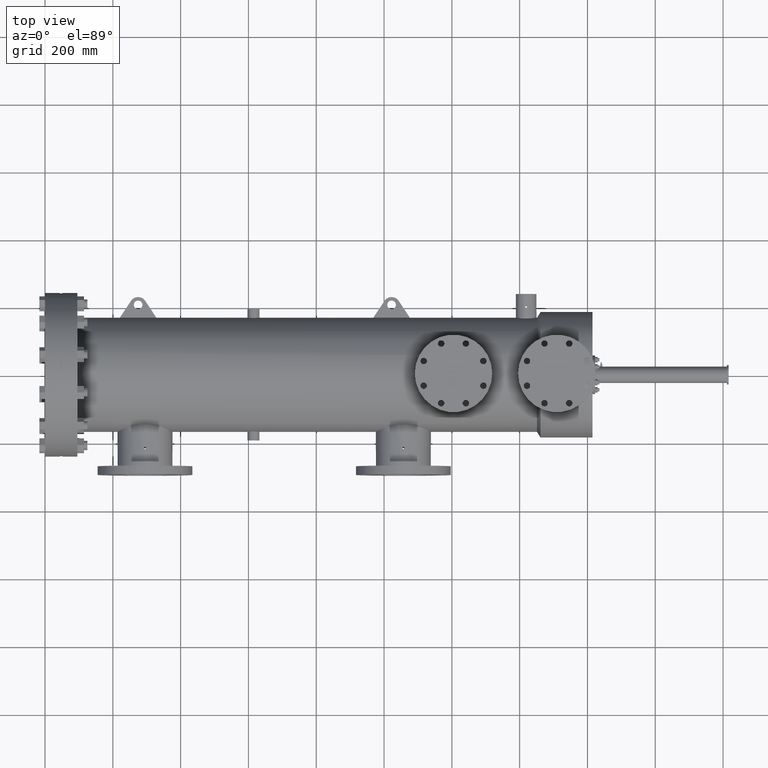
[diagram: clean part render]
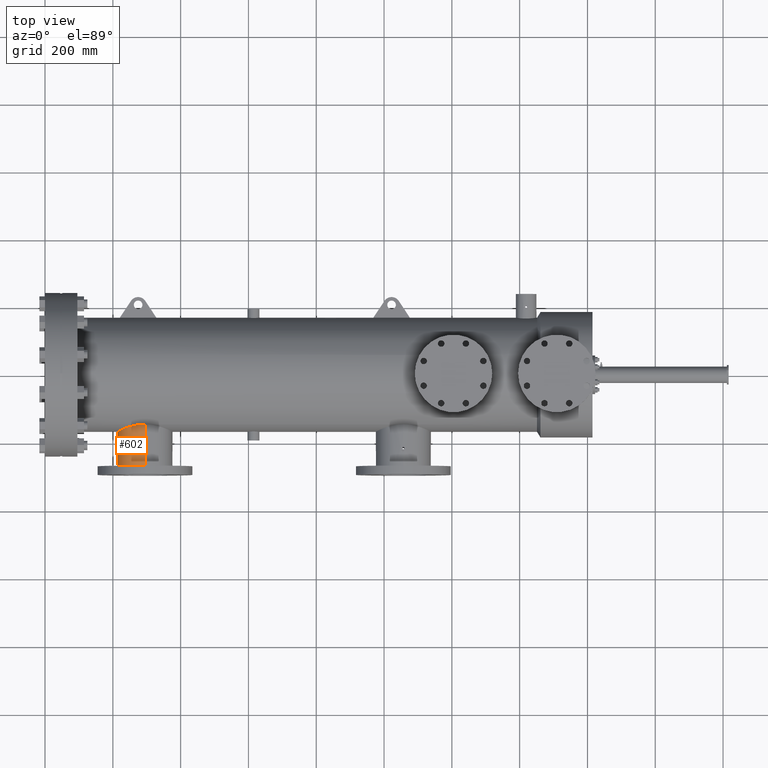
[diagram: same view with one face highlighted and labeled with its STEP entity id]
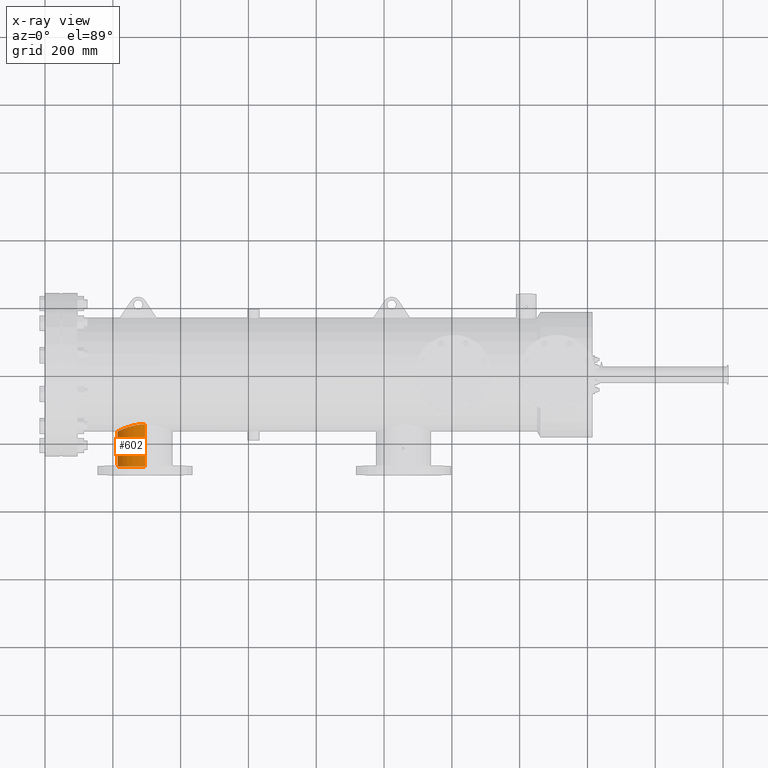
[diagram: x-ray of the same camera — body ghosted, the highlighted face saturated]
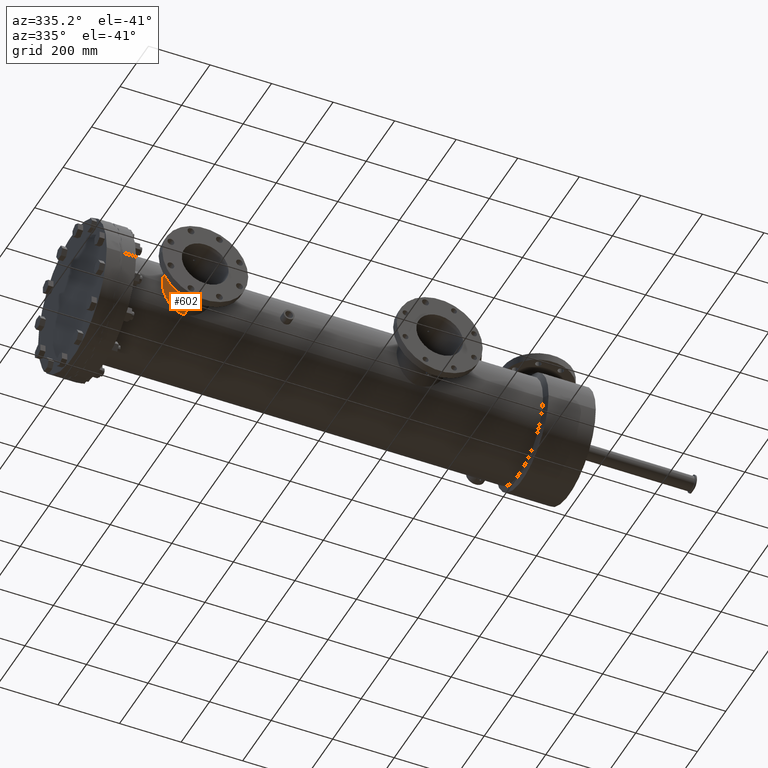
[diagram: same view with one face highlighted and labeled with its STEP entity id]
A machine part, top view. The second image highlights one B-rep face of the part: STEP entity #602.
The next image is the same camera in x-ray: the body ghosted, the highlighted face saturated — about 0% of this face is hidden behind the body in this view.
A second angle (auxiliary view) of the same face is appended — the face is thin or edge-on in the first view.
In plain terms, the highlighted cylindrical surface (edge-blend (fillet) strip) has radius 81.2 mm, axis along (-0, 1, -0).
Its self-contained STEP definition (entity closure, byte-faithful):
#44 = CARTESIAN_POINT ( 'NONE',  ( 11.61151093272998125, -8.248149606299213232, 3.196850393700789272 ) ) ;
#66 = CARTESIAN_POINT ( 'NONE',  ( 11.50807734585831810, -8.265039930871123985, -3.195192657904572631 ) ) ;
#73 = EDGE_CURVE ( 'NONE', #7956, #22293, #9387, .T. ) ;
#132 = CARTESIAN_POINT ( 'NONE',  ( 8.458497499643724993, -6.599050712015190001, -0.5302748627339023413 ) ) ;
#168 = CARTESIAN_POINT ( 'NONE',  ( 11.45021344686865739, -8.849308641248105900, 3.192826723404334821 ) ) ;
#178 = CARTESIAN_POINT ( 'NONE',  ( 9.742683212403338899, -6.090973894273273181, 2.594228848012255284 ) ) ;
#248 = EDGE_CURVE ( 'NONE', #9014, #5835, #6897, .T. ) ;
#279 = CARTESIAN_POINT ( 'NONE',  ( 11.50784257292979085, -8.264573304482674132, 3.195228575385139269 ) ) ;
#303 = ORIENTED_EDGE ( 'NONE', *, *, #10414, .T. ) ;
#332 = CARTESIAN_POINT ( 'NONE',  ( 10.77235801617183064, -5.857022406040624851, 3.086540354699110811 ) ) ;
#355 = CARTESIAN_POINT ( 'NONE',  ( 11.32275786513013038, -8.427448652376632765, 3.183786917630766489 ) ) ;
#406 = CARTESIAN_POINT ( 'NONE',  ( 10.18428026599136160, -5.969834885509524902, 2.862445039251523937 ) ) ;
#458 = DIRECTION ( 'NONE',  ( -0.0000000000000000000, 1.000000000000000000, -0.0000000000000000000 ) ) ;
#487 = CARTESIAN_POINT ( 'NONE',  ( 8.456518714201127551, -6.599973751663491761, 0.5265251063865531433 ) ) ;
#533 = CARTESIAN_POINT ( 'NONE',  ( 8.848901996202322096, -6.421611165752963757, -1.612041120261620497 ) ) ;
#573 = EDGE_CURVE ( 'NONE', #19284, #10833, #22275, .T. ) ;
#602 = ADVANCED_FACE ( 'NONE', ( #10492 ), #20033, .T. ) ;
#621 = DIRECTION ( 'NONE',  ( 0.0000000000000000000, 0.0000000000000000000, 1.000000000000000000 ) ) ;
#763 = EDGE_CURVE ( 'NONE', #10833, #6770, #14061, .T. ) ;
#1412 = CARTESIAN_POINT ( 'NONE',  ( 11.61151093272998125, -8.248149606299213232, -3.196850393700789272 ) ) ;
#1666 = CARTESIAN_POINT ( 'NONE',  ( 11.35568998999112900, -8.766446998135071667, 3.186620063515346324 ) ) ;
#1711 = CARTESIAN_POINT ( 'NONE',  ( 11.61151093272998125, -5.797475832359250347, -3.196850393700789272 ) ) ;
#1753 = CARTESIAN_POINT ( 'NONE',  ( 11.61151093272998125, -8.891850393700789112, 3.196850393700789272 ) ) ;
#1796 = CARTESIAN_POINT ( 'NONE',  ( 11.56932522801770702, -8.250238218565785431, -3.196638205346775674 ) ) ;
#1876 = CARTESIAN_POINT ( 'NONE',  ( 11.45033700862472870, -8.290621838728592152, -3.192832886669727976 ) ) ;
#1951 = CARTESIAN_POINT ( 'NONE',  ( 8.442913355982932799, -6.606510702401973134, -0.4249192809880080746 ) ) ;
#1996 = CARTESIAN_POINT ( 'NONE',  ( 8.846813427624908854, -6.422617823148095262, 1.605932230355080481 ) ) ;
#2144 = CARTESIAN_POINT ( 'NONE',  ( 9.784911614480440889, -6.078146475695962891, 2.624130030471187425 ) ) ;
#2479 = CARTESIAN_POINT ( 'NONE',  ( 11.61151093272998125, 0.0000000000000000000, -3.196850393700789272 ) ) ;
#2531 = DIRECTION ( 'NONE',  ( 0.0000000000000000000, 0.0000000000000000000, 1.000000000000000000 ) ) ;
#2878 = CARTESIAN_POINT ( 'NONE',  ( 11.32230896551986632, -8.712811549768018082, -3.183752597117699867 ) ) ;
#2902 = AXIS2_PLACEMENT_3D ( 'NONE', #9490, #458, #621 ) ;
#3193 = CARTESIAN_POINT ( 'NONE',  ( 11.59049859293193663, -8.891850393700787336, -3.196850393700789272 ) ) ;
#3439 = CARTESIAN_POINT ( 'NONE',  ( 8.446569208148059005, -6.604758572881263667, -0.4513363430929743791 ) ) ;
#3471 = CARTESIAN_POINT ( 'NONE',  ( 11.36900780317957604, -8.782650875642969979, 3.187674053540088259 ) ) ;
#3508 = CARTESIAN_POINT ( 'NONE',  ( 10.57302537146444266, -5.888882388096578602, -3.025276955871192275 ) ) ;
#3545 = CARTESIAN_POINT ( 'NONE',  ( 11.28966053902919242, -8.570000000000000284, 3.180607609212356301 ) ) ;
#3631 = B_SPLINE_CURVE_WITH_KNOTS ( 'NONE', 3,
 ( #1412, #14499, #1796, #7144, #3812, #66, #16282, #3669, #1876, #10912, #12544, #7223, #5532, #14352, #5609, #9092, #7065, #19623, #18118, #8876, #16126, #7376, #3740 ),
 .UNSPECIFIED., .F., .F.,
 ( 4, 2, 2, 2, 2, 2, 2, 2, 1, 2, 2, 4 ),
 ( 0.03836560470759194791, 0.03996289439680020955, 0.04076153924140434037, 0.04156018408600847119, 0.04315747377521670508, 0.04475476346442493203, 0.04635205315363316592, 0.04715069799823728980, 0.04794934284284141368, 0.04874798768744554450, 0.04954663253204967532, 0.05114392222125795778 ),
 .UNSPECIFIED. ) ;
#3663 = CARTESIAN_POINT ( 'NONE',  ( 10.47527249311594844, -5.906974090967560542, -2.989914688120853370 ) ) ;
#3669 = CARTESIAN_POINT ( 'NONE',  ( 11.46881018599957791, -8.280744296837719176, -3.193723377356949111 ) ) ;
#3695 = CARTESIAN_POINT ( 'NONE',  ( 11.52822037406186340, -8.881066097748556487, 3.195781212052061449 ) ) ;
#3702 = CARTESIAN_POINT ( 'NONE',  ( 10.27814528161117202, -5.948003857664111216, 2.907404456473193566 ) ) ;
#3740 = CARTESIAN_POINT ( 'NONE',  ( 11.28966053902919242, -8.570000000000000284, -3.180607609212355857 ) ) ;
#3771 = CARTESIAN_POINT ( 'NONE',  ( 8.540335452937078742, -6.560349412870208674, 0.8890986351949736743 ) ) ;
#3799 = CARTESIAN_POINT ( 'NONE',  ( 11.39895851871698085, -8.327388114179878897, 3.189812026432456982 ) ) ;
#3812 = CARTESIAN_POINT ( 'NONE',  ( 11.52828637562934055, -8.258916693228915307, -3.195782893301079675 ) ) ;
#3849 = CARTESIAN_POINT ( 'NONE',  ( 10.62160021882254846, -5.881130667303514414, 3.040179822462560022 ) ) ;
#3978 = EDGE_CURVE ( 'NONE', #8954, #6770, #20712, .T. ) ;
#4003 = CARTESIAN_POINT ( 'NONE',  ( 10.00199715049182991, -6.015995769440700691, 2.764063017299037917 ) ) ;
#4079 = CARTESIAN_POINT ( 'NONE',  ( 11.61151093272998125, 0.0000000000000000000, 0.0000000000000000000 ) ) ;
#4107 = VECTOR ( 'NONE', #4573, 39.37007874015748143 ) ;
#4420 = ORIENTED_EDGE ( 'NONE', *, *, #573, .T. ) ;
#4423 = VERTEX_POINT ( 'NONE', #21511 ) ;
#4573 = DIRECTION ( 'NONE',  ( -0.0000000000000000000, 1.000000000000000000, -0.0000000000000000000 ) ) ;
#4597 = CARTESIAN_POINT ( 'NONE',  ( 11.29789287070641102, -8.643085512295995088, -3.181430556105758090 ) ) ;
#4676 = CARTESIAN_POINT ( 'NONE',  ( 11.36916726501029551, -8.782832583178198149, -3.187686232330557701 ) ) ;
#4822 = CARTESIAN_POINT ( 'NONE',  ( 11.31018143368431339, -8.683576049831108534, -3.182619904600065830 ) ) ;
#4900 = CARTESIAN_POINT ( 'NONE',  ( 11.48815805714297866, -8.867826958166967088, -3.194513766813575018 ) ) ;
#5025 = CARTESIAN_POINT ( 'NONE',  ( 11.28966053902919242, -8.570000000000000284, 3.180607609212356301 ) ) ;
#5219 = CARTESIAN_POINT ( 'NONE',  ( 10.28370182087450857, -5.946776332164515289, -2.909905599219831718 ) ) ;
#5292 = CARTESIAN_POINT ( 'NONE',  ( 9.212923191392265565, -6.273763750465422007, -2.114075685226752821 ) ) ;
#5398 = CARTESIAN_POINT ( 'NONE',  ( 11.29788968121482462, -8.643086469743165523, 3.181430252482041698 ) ) ;
#5447 = CARTESIAN_POINT ( 'NONE',  ( 11.61151093272998125, 0.0000000000000000000, 3.196850393700789272 ) ) ;
#5516 = CARTESIAN_POINT ( 'NONE',  ( 11.29176385566909246, -8.527663390296009283, 3.180822436108310836 ) ) ;
#5532 = CARTESIAN_POINT ( 'NONE',  ( 11.35585127822720963, -8.373346226186296093, -3.186633007103671922 ) ) ;
#5568 = CARTESIAN_POINT ( 'NONE',  ( 8.526066262455191946, -6.567042648945024652, 0.8382717233192127360 ) ) ;
#5609 = CARTESIAN_POINT ( 'NONE',  ( 11.33272714053243035, -8.408822948209914827, -3.184675321826520022 ) ) ;
#5639 = CARTESIAN_POINT ( 'NONE',  ( 9.015967595739576623, -6.351498271050671995, 1.869188325753596391 ) ) ;
#5713 = CARTESIAN_POINT ( 'NONE',  ( 9.618556127020333690, -6.130189320990268698, 2.500133098202488302 ) ) ;
#5807 = CARTESIAN_POINT ( 'NONE',  ( 8.900650826988563580, -6.399637855527481101, 1.695230990256809456 ) ) ;
#5835 = VERTEX_POINT ( 'NONE', #13113 ) ;
#6394 = CARTESIAN_POINT ( 'NONE',  ( 11.53842438466405440, -8.883621233568810283, -3.196031730801970117 ) ) ;
#6616 = CARTESIAN_POINT ( 'NONE',  ( 11.41506339750409538, -8.825820538486400579, -3.190857488850840085 ) ) ;
#6691 = CARTESIAN_POINT ( 'NONE',  ( 11.33220206308982192, -8.731297082320496727, -3.184646999667306577 ) ) ;
#6770 = VERTEX_POINT ( 'NONE', #19017 ) ;
#6897 = LINE ( 'NONE', #2479, #4107 ) ;
#6957 = CARTESIAN_POINT ( 'NONE',  ( 11.30048222446690964, -8.653425580064068257, 3.181685565877160116 ) ) ;
#6998 = CARTESIAN_POINT ( 'NONE',  ( 11.10972238752540164, -5.819080559180713763, -3.157336477522833640 ) ) ;
#7065 = CARTESIAN_POINT ( 'NONE',  ( 11.31381488224755039, -8.446334040952351074, -3.182966847218192452 ) ) ;
#7136 = CARTESIAN_POINT ( 'NONE',  ( 8.525169606556019630, -6.567417020356452362, -0.8398721504414820016 ) ) ;
#7144 = CARTESIAN_POINT ( 'NONE',  ( 11.53848036632587437, -8.256369483385745056, -3.196032654485955415 ) ) ;
#7206 = CARTESIAN_POINT ( 'NONE',  ( 11.35560885062735714, -8.373681095545135733, 3.186613131084533368 ) ) ;
#7214 = CARTESIAN_POINT ( 'NONE',  ( 9.178800249102392783, -6.286892343632763946, -2.074718771202328504 ) ) ;
#7223 = CARTESIAN_POINT ( 'NONE',  ( 11.36916699941300379, -8.357169361201338020, -3.187686153099507980 ) ) ;
#7262 = CARTESIAN_POINT ( 'NONE',  ( 9.277399803654502008, -6.249126620215433192, 2.186850205680850312 ) ) ;
#7338 = CARTESIAN_POINT ( 'NONE',  ( 8.419906928812801894, -6.617565164309640480, 0.2113885857045727512 ) ) ;
#7376 = CARTESIAN_POINT ( 'NONE',  ( 11.28966053902919242, -8.548735330178297787, -3.180607609212355857 ) ) ;
#7413 = CARTESIAN_POINT ( 'NONE',  ( 11.55842818757564672, -5.797475832359250347, 3.196850393700789272 ) ) ;
#7439 = VERTEX_POINT ( 'NONE', #20920 ) ;
#7499 = CARTESIAN_POINT ( 'NONE',  ( 9.498654000076774295, -6.169847338809647752, 2.401336238084870178 ) ) ;
#7956 = VERTEX_POINT ( 'NONE', #5025 ) ;
#8162 = CARTESIAN_POINT ( 'NONE',  ( 11.56959935747271828, -8.889812568072384735, -3.196643235012266437 ) ) ;
#8321 = CARTESIAN_POINT ( 'NONE',  ( 11.28966053902919420, -8.591284848887955405, -3.180607609212356301 ) ) ;
#8429 = DIRECTION ( 'NONE',  ( -0.0000000000000000000, 1.000000000000000000, -0.0000000000000000000 ) ) ;
#8509 = VECTOR ( 'NONE', #14694, 39.37007874015748143 ) ;
#8646 = CARTESIAN_POINT ( 'NONE',  ( 11.61151093272998125, -10.63000000000000078, -3.196850393700789272 ) ) ;
#8702 = CARTESIAN_POINT ( 'NONE',  ( 11.61151093272998125, -8.891850393700789112, -3.196850393700789272 ) ) ;
#8785 = CARTESIAN_POINT ( 'NONE',  ( 10.87448458971577381, -5.843198363072066748, -3.112541144290206230 ) ) ;
#8866 = CARTESIAN_POINT ( 'NONE',  ( 11.18893440935740102, -5.812610266661452307, -3.169248060401546496 ) ) ;
#8876 = CARTESIAN_POINT ( 'NONE',  ( 11.29798403601698631, -8.496508363801849484, -3.181439562351997097 ) ) ;
#8900 = CARTESIAN_POINT ( 'NONE',  ( 11.33804550205587880, -8.740048109737397652, 3.185137977229634654 ) ) ;
#8931 = CARTESIAN_POINT ( 'NONE',  ( 8.419901597715380603, -6.617567481049118960, -0.2120127386396023217 ) ) ;
#8942 = CARTESIAN_POINT ( 'NONE',  ( 9.662557827871200544, -6.115691008554178687, -2.536130137333548973 ) ) ;
#8954 = VERTEX_POINT ( 'NONE', #10670 ) ;
#9013 = CARTESIAN_POINT ( 'NONE',  ( 11.24174663294269649, -5.809010479924299197, -3.175837537480977524 ) ) ;
#9014 = VERTEX_POINT ( 'NONE', #8646 ) ;
#9057 = CARTESIAN_POINT ( 'NONE',  ( 11.61151093272998125, -5.797475832359250347, 3.196850393700789272 ) ) ;
#9092 = CARTESIAN_POINT ( 'NONE',  ( 11.32279283284098703, -8.427380563693857241, -3.183790063279829052 ) ) ;
#9145 = CARTESIAN_POINT ( 'NONE',  ( 11.61151093272998125, 0.0000000000000000000, 3.196850393700789272 ) ) ;
#9159 = CARTESIAN_POINT ( 'NONE',  ( 11.29999956210313883, -8.486386318222461256, 3.181639550500524383 ) ) ;
#9206 = CARTESIAN_POINT ( 'NONE',  ( 11.50517265774635156, -5.798204613897641302, 3.195529183324760769 ) ) ;
#9231 = CARTESIAN_POINT ( 'NONE',  ( 11.28966053902919242, -8.570000000000000284, 3.180607609212356301 ) ) ;
#9283 = CARTESIAN_POINT ( 'NONE',  ( 9.913579878674218193, -6.040326930348040690, 2.710639548438712687 ) ) ;
#9367 = CARTESIAN_POINT ( 'NONE',  ( 8.702510857856298188, -6.485961016470844775, 1.329805063699796230 ) ) ;
#9387 = B_SPLINE_CURVE_WITH_KNOTS ( 'NONE', 3,
 ( #9231, #17949, #5516, #9159, #21738, #12671, #355, #18024, #21591, #7206, #12829, #3799, #16266, #21437, #19763, #18102, #21660, #279, #12750, #10736, #12529, #44 ),
 .UNSPECIFIED., .F., .F.,
 ( 4, 2, 2, 2, 2, 2, 2, 2, 2, 2, 4 ),
 ( 0.01279044802759993736, 0.01438851300567789079, 0.01598657798375584249, 0.01678561047279482007, 0.01758464296183379766, 0.01918270793991167650, 0.02078077291798955881, 0.02157980540702857108, 0.02237883789606757989, 0.02397690287414563221, 0.02557496785222368105 ),
 .UNSPECIFIED. ) ;
#9411 = CARTESIAN_POINT ( 'NONE',  ( 8.774649359661802706, -6.454003680879266902, -1.474712488055556214 ) ) ;
#9490 = CARTESIAN_POINT ( 'NONE',  ( 11.61151093272998125, -10.63000000000000078, 0.0000000000000000000 ) ) ;
#9847 = B_SPLINE_CURVE_WITH_KNOTS ( 'NONE', 3,
 ( #1753, #21490, #21564, #19806, #3695, #19651, #10866, #12498, #168, #17991, #12640, #3471, #1666, #8900, #17912, #21249, #10784, #14222, #6957, #5398, #15904, #12568, #3545 ),
 .UNSPECIFIED., .F., .F.,
 ( 4, 2, 2, 2, 2, 2, 2, 2, 1, 2, 2, 4 ),
 ( 0.0000000000000000000, 0.001598806003450066330, 0.002398209005175099603, 0.003197612006900132659, 0.004796418010350167113, 0.006395224013800202868, 0.007994030017250236889, 0.008793433018975173668, 0.009592836020700110447, 0.01039223902242504896, 0.01119164202414998574, 0.01279044802759993736 ),
 .UNSPECIFIED. ) ;
#9926 = EDGE_CURVE ( 'NONE', #7439, #7956, #9847, .T. ) ;
#10414 = EDGE_CURVE ( 'NONE', #9014, #4423, #12349, .T. ) ;
#10492 = FACE_OUTER_BOUND ( 'NONE', #13109, .T. ) ;
#10525 = EDGE_CURVE ( 'NONE', #19501, #5835, #14927, .T. ) ;
#10590 = CARTESIAN_POINT ( 'NONE',  ( 11.50584512929512826, -5.797475832359250347, -3.196850393700788828 ) ) ;
#10668 = CARTESIAN_POINT ( 'NONE',  ( 10.18988406736139041, -5.968487511225736064, -2.865258985346508691 ) ) ;
#10670 = CARTESIAN_POINT ( 'NONE',  ( 11.61151093272998125, -8.248149606299213232, -3.196850393700789272 ) ) ;
#10736 = CARTESIAN_POINT ( 'NONE',  ( 11.56916505140810436, -8.250254675527948223, 3.196636522487824816 ) ) ;
#10745 = CARTESIAN_POINT ( 'NONE',  ( 9.018009452579203611, -6.350667287042274900, -1.871971490222199108 ) ) ;
#10784 = CARTESIAN_POINT ( 'NONE',  ( 11.31368386920344449, -8.693352608965341233, 3.182954566821881492 ) ) ;
#10831 = CARTESIAN_POINT ( 'NONE',  ( 8.499189756459287537, -6.579691593683861583, -0.7378910220835079858 ) ) ;
#10833 = VERTEX_POINT ( 'NONE', #21044 ) ;
#10866 = CARTESIAN_POINT ( 'NONE',  ( 11.49793468499053972, -8.871329426253186767, 3.194847099052514849 ) ) ;
#10912 = CARTESIAN_POINT ( 'NONE',  ( 11.41538107586358208, -8.313948696444557029, -3.190876361637474457 ) ) ;
#10950 = CARTESIAN_POINT ( 'NONE',  ( 8.488062986723837966, -6.584979070733899320, 0.6832008526245707536 ) ) ;
#11024 = CARTESIAN_POINT ( 'NONE',  ( 11.39821846134206673, -5.801334686321820477, 3.189839645403159452 ) ) ;
#11183 = CARTESIAN_POINT ( 'NONE',  ( 8.622249505146996285, -6.522336961120939414, 1.137971467402074222 ) ) ;
#11225 = CARTESIAN_POINT ( 'NONE',  ( 8.705630288058419097, -6.484630072089783148, -1.333589315135875752 ) ) ;
#11256 = CARTESIAN_POINT ( 'NONE',  ( 8.433240245630868159, -6.611153716373257438, -0.3452022212319483807 ) ) ;
#11764 = CARTESIAN_POINT ( 'NONE',  ( 11.29175115984440581, -8.612211178709655357, -3.180821129383531787 ) ) ;
#12053 = CARTESIAN_POINT ( 'NONE',  ( 11.61151093272998125, -8.248149606299213232, 3.196850393700789272 ) ) ;
#12349 = CIRCLE ( 'NONE', #2902, 3.196850393700789272 ) ;
#12409 = ORIENTED_EDGE ( 'NONE', *, *, #248, .F. ) ;
#12498 = CARTESIAN_POINT ( 'NONE',  ( 11.46869905227581476, -8.859201811425295503, 3.193718467427247631 ) ) ;
#12529 = CARTESIAN_POINT ( 'NONE',  ( 11.59050359794233032, -8.248149606299209680, 3.196850393700788828 ) ) ;
#12544 = CARTESIAN_POINT ( 'NONE',  ( 11.39883401062319024, -8.327521156324580787, -3.189802833950880157 ) ) ;
#12568 = CARTESIAN_POINT ( 'NONE',  ( 11.28966053902919242, -8.591012310683298736, 3.180607609212356301 ) ) ;
#12607 = CARTESIAN_POINT ( 'NONE',  ( 8.586965601434281226, -6.538616588634496019, -1.040679369293839418 ) ) ;
#12640 = CARTESIAN_POINT ( 'NONE',  ( 11.39867784697618447, -8.812343228421966046, 3.189792425388046748 ) ) ;
#12650 = CARTESIAN_POINT ( 'NONE',  ( 11.08077766205427572, -5.820801272018155892, 3.154247425264643745 ) ) ;
#12671 = CARTESIAN_POINT ( 'NONE',  ( 11.31819415546806695, -8.437093428291039032, 3.183368363206715124 ) ) ;
#12750 = CARTESIAN_POINT ( 'NONE',  ( 11.52790365903558367, -8.258487448130807707, 3.195823533043301357 ) ) ;
#12807 = CARTESIAN_POINT ( 'NONE',  ( 10.57168978040999718, -5.889740196066968636, 3.023475543371811902 ) ) ;
#12829 = CARTESIAN_POINT ( 'NONE',  ( 11.36891166485894544, -8.357433184451600994, 3.187667625067633459 ) ) ;
#12958 = CARTESIAN_POINT ( 'NONE',  ( 9.208463654153289824, -6.275264430391775505, 2.110875347226388143 ) ) ;
#12999 = CARTESIAN_POINT ( 'NONE',  ( 9.503982659773960506, -6.168032650787603544, -2.405971499648567491 ) ) ;
#13063 = ORIENTED_EDGE ( 'NONE', *, *, #10525, .T. ) ;
#13109 = EDGE_LOOP ( 'NONE', ( #12409, #303, #13202, #15380, #20372, #22722, #4420, #22594, #19975, #16132, #13063 ) ) ;
#13113 = CARTESIAN_POINT ( 'NONE',  ( 11.61151093272998125, -8.891850393700789112, -3.196850393700789272 ) ) ;
#13202 = ORIENTED_EDGE ( 'NONE', *, *, #18329, .T. ) ;
#13270 = CARTESIAN_POINT ( 'NONE',  ( 8.414660539029190645, -6.620102290366491005, 1.519969738376016713E-22 ) ) ;
#13547 = CARTESIAN_POINT ( 'NONE',  ( 11.39885952023127125, -8.812502656703875559, -3.189804593675908073 ) ) ;
#13626 = CARTESIAN_POINT ( 'NONE',  ( 11.28966053902919242, -8.570000000000000284, -3.180607609212355857 ) ) ;
#13707 = CARTESIAN_POINT ( 'NONE',  ( 11.30044480997707090, -8.653290461376329290, -3.181681914991572047 ) ) ;
#13964 = VECTOR ( 'NONE', #8429, 39.37007874015748143 ) ;
#14061 = B_SPLINE_CURVE_WITH_KNOTS ( 'NONE', 3,
 ( #17331, #19215, #8931, #11256, #17870, #1951, #3439, #132, #19846, #10831, #7136, #12607, #15949, #19691, #11225, #14421, #9411, #533, #16116, #10745, #23164, #7214, #5292, #21449, #21918, #16195, #12999, #8942, #14182, #15868, #14095, #19532, #19771, #10668, #5219, #3663, #3508, #17710, #8785, #18032, #21295, #23081, #6998, #8866, #9013, #19615, #10590, #1711 ),
 .UNSPECIFIED., .F., .F.,
 ( 4, 2, 2, 2, 2, 2, 2, 2, 2, 2, 2, 2, 2, 2, 2, 2, 2, 2, 2, 2, 2, 2, 2, 4 ),
 ( 0.2579606276627499639, 0.2660141354868414409, 0.2680275124428643241, 0.2700408893988872072, 0.2740676433109329735, 0.2821211511350244505, 0.2901746589591159275, 0.2942014128711616938, 0.2982281667832074601, 0.3062816746072990481, 0.3143351824313906362, 0.3183619363434364580, 0.3223886902554822798, 0.3304421980795739788, 0.3384957059036657334, 0.3425224598157114442, 0.3465492137277572104, 0.3546027215518486320, 0.3626562293759399980, 0.3707097372000314195, 0.3727231141560543581, 0.3747364911120772968, 0.3787632450241232296, 0.3868167528482150952 ),
 .UNSPECIFIED. ) ;
#14095 = CARTESIAN_POINT ( 'NONE',  ( 9.917386803256171390, -6.039662592487116122, -2.711550027126179874 ) ) ;
#14182 = CARTESIAN_POINT ( 'NONE',  ( 9.745017286367293252, -6.089834743409519469, -2.597444853756417871 ) ) ;
#14222 = CARTESIAN_POINT ( 'NONE',  ( 11.30660431505731545, -8.673588798970918390, 3.182278091552382282 ) ) ;
#14352 = CARTESIAN_POINT ( 'NONE',  ( 11.33820690766641981, -8.399693487347128951, -3.185151830743472523 ) ) ;
#14421 = CARTESIAN_POINT ( 'NONE',  ( 8.750936691270105428, -6.464463481580998483, -1.428186889597303111 ) ) ;
#14464 = CARTESIAN_POINT ( 'NONE',  ( 8.586668878932721682, -6.538753822086652789, 1.039824058969502918 ) ) ;
#14499 = CARTESIAN_POINT ( 'NONE',  ( 11.59025633608754191, -8.248149606299213232, -3.196850393700790605 ) ) ;
#14534 = CARTESIAN_POINT ( 'NONE',  ( 11.31814132723281929, -5.804829586082335346, 3.183472644388731343 ) ) ;
#14694 = DIRECTION ( 'NONE',  ( -0.0000000000000000000, 1.000000000000000000, -0.0000000000000000000 ) ) ;
#14925 = CARTESIAN_POINT ( 'NONE',  ( 11.61151093272998125, -5.797475832359250347, 3.196850393700789272 ) ) ;
#14927 = B_SPLINE_CURVE_WITH_KNOTS ( 'NONE', 3,
 ( #13626, #8321, #11764, #4597, #13707, #20841, #4822, #2878, #6691, #17329, #4676, #13547, #6616, #19139, #20763, #22682, #4900, #22759, #17091, #6394, #8162, #3193, #8702 ),
 .UNSPECIFIED., .F., .F.,
 ( 4, 2, 2, 2, 2, 2, 2, 2, 1, 2, 2, 4 ),
 ( 0.0000000000000000000, 0.001598805434090647777, 0.002398208151136012323, 0.003197610868181377086, 0.004796416302272184240, 0.006395221736362990961, 0.007994027170453797682, 0.008793429887499178491, 0.009592832604544559300, 0.01039223532158994011, 0.01119163803863532092, 0.01279044347272622652 ),
 .UNSPECIFIED. ) ;
#15380 = ORIENTED_EDGE ( 'NONE', *, *, #9926, .T. ) ;
#15417 = AXIS2_PLACEMENT_3D ( 'NONE', #4079, #18559, #2531 ) ;
#15868 = CARTESIAN_POINT ( 'NONE',  ( 9.873672333114663857, -6.052076936726391132, -2.683735438995474176 ) ) ;
#15904 = CARTESIAN_POINT ( 'NONE',  ( 11.29169835890767182, -8.611911522221268100, 3.180815864169128648 ) ) ;
#15949 = CARTESIAN_POINT ( 'NONE',  ( 8.622781688569036262, -6.522089865142308263, -1.139505367603347974 ) ) ;
#16116 = CARTESIAN_POINT ( 'NONE',  ( 8.902547834856854081, -6.398665849272440198, -1.700601694139644904 ) ) ;
#16126 = CARTESIAN_POINT ( 'NONE',  ( 11.29174748325659650, -8.527705191582395372, -3.180820842598649278 ) ) ;
#16132 = ORIENTED_EDGE ( 'NONE', *, *, #16876, .T. ) ;
#16160 = CARTESIAN_POINT ( 'NONE',  ( 11.34477115506864031, -5.803544401046481838, 3.185815520828175540 ) ) ;
#16195 = CARTESIAN_POINT ( 'NONE',  ( 9.427867426576465704, -6.194519534056559529, -2.337127592951413479 ) ) ;
#16240 = CARTESIAN_POINT ( 'NONE',  ( 10.47255086719074235, -5.908039798851676849, 2.987541189554778320 ) ) ;
#16266 = CARTESIAN_POINT ( 'NONE',  ( 11.41520467802960148, -8.314088446970970381, 3.190865206730252979 ) ) ;
#16282 = CARTESIAN_POINT ( 'NONE',  ( 11.49803170412896058, -8.268634254016056673, -3.194850532185068204 ) ) ;
#16479 = CARTESIAN_POINT ( 'NONE',  ( 8.928807860001182206, -6.387758777940104160, 1.739445631855833563 ) ) ;
#16876 = EDGE_CURVE ( 'NONE', #8954, #19501, #3631, .T. ) ;
#17091 = CARTESIAN_POINT ( 'NONE',  ( 11.52808524022045944, -8.881028679458125907, -3.195777576765645112 ) ) ;
#17329 = CARTESIAN_POINT ( 'NONE',  ( 11.35557330204785131, -8.766280724029600790, -3.186610407054879968 ) ) ;
#17331 = CARTESIAN_POINT ( 'NONE',  ( 8.414660539029190645, -6.620102290366491005, 1.519969738376016713E-22 ) ) ;
#17710 = CARTESIAN_POINT ( 'NONE',  ( 10.77263173047956180, -5.856994863748815838, -3.086589477840218976 ) ) ;
#17715 = DIRECTION ( 'NONE',  ( -0.0000000000000000000, 1.000000000000000000, -0.0000000000000000000 ) ) ;
#17870 = CARTESIAN_POINT ( 'NONE',  ( 8.436250779997561011, -6.609707357285875773, -0.3718735822726885742 ) ) ;
#17912 = CARTESIAN_POINT ( 'NONE',  ( 11.33257244039833012, -8.730909621499087336, 3.184661766514636838 ) ) ;
#17949 = CARTESIAN_POINT ( 'NONE',  ( 11.28966053902919242, -8.548997428243948704, 3.180607609212357190 ) ) ;
#17991 = CARTESIAN_POINT ( 'NONE',  ( 11.41522974059425621, -8.825937276759020733, 3.190867132652787763 ) ) ;
#18002 = CARTESIAN_POINT ( 'NONE',  ( 10.87422969405782069, -5.843244103837950121, 3.112454176288031338 ) ) ;
#18024 = CARTESIAN_POINT ( 'NONE',  ( 11.33272460820048799, -8.408824921241231820, 3.184675125688722019 ) ) ;
#18032 = CARTESIAN_POINT ( 'NONE',  ( 11.00454480117099898, -5.829089110510646599, -3.138813277369080001 ) ) ;
#18079 = CARTESIAN_POINT ( 'NONE',  ( 8.440836290027021960, -6.607500987161301076, 0.4217150247581922806 ) ) ;
#18102 = CARTESIAN_POINT ( 'NONE',  ( 11.46896511338766622, -8.281244271887516106, 3.193684393842004532 ) ) ;
#18118 = CARTESIAN_POINT ( 'NONE',  ( 11.30058355230660005, -8.486199221988027119, -3.181695477314287146 ) ) ;
#18233 = CARTESIAN_POINT ( 'NONE',  ( 11.42502433562294506, -5.800411438262886854, 3.191518561191487358 ) ) ;
#18313 = CARTESIAN_POINT ( 'NONE',  ( 8.821051688566321047, -6.433752164737566837, 1.560733359393298381 ) ) ;
#18329 = EDGE_CURVE ( 'NONE', #4423, #7439, #20110, .T. ) ;
#18559 = DIRECTION ( 'NONE',  ( -0.0000000000000000000, 1.000000000000000000, -0.0000000000000000000 ) ) ;
#18871 = CARTESIAN_POINT ( 'NONE',  ( 11.61151093272998125, 0.0000000000000000000, -3.196850393700789272 ) ) ;
#18883 = CARTESIAN_POINT ( 'NONE',  ( 11.28966053902919242, -8.570000000000000284, -3.180607609212355857 ) ) ;
#19017 = CARTESIAN_POINT ( 'NONE',  ( 11.61151093272998125, -5.797475832359250347, -3.196850393700789272 ) ) ;
#19139 = CARTESIAN_POINT ( 'NONE',  ( 11.44146237788397080, -8.843465155807365363, -3.192336699948238099 ) ) ;
#19215 = CARTESIAN_POINT ( 'NONE',  ( 8.414660539029190645, -6.620102290366491893, -0.1058286365489256586 ) ) ;
#19284 = VERTEX_POINT ( 'NONE', #14925 ) ;
#19501 = VERTEX_POINT ( 'NONE', #18883 ) ;
#19532 = CARTESIAN_POINT ( 'NONE',  ( 10.00653301531650641, -6.015277614651650673, -2.765249717527963558 ) ) ;
#19615 = CARTESIAN_POINT ( 'NONE',  ( 11.40019577027215192, -5.800365343420538444, -3.191624569162612168 ) ) ;
#19623 = CARTESIAN_POINT ( 'NONE',  ( 11.30672143220154346, -8.466068452046615178, -3.182289318498046971 ) ) ;
#19651 = CARTESIAN_POINT ( 'NONE',  ( 11.50798720185632718, -8.874929945196861070, 3.195189776776049762 ) ) ;
#19691 = CARTESIAN_POINT ( 'NONE',  ( 8.683982228272355997, -6.494361620143941138, -1.285382728521065721 ) ) ;
#19745 = LINE ( 'NONE', #9145, #8509 ) ;
#19763 = CARTESIAN_POINT ( 'NONE',  ( 11.45034444284824637, -8.291208781219808088, 3.192798878824210984 ) ) ;
#19771 = CARTESIAN_POINT ( 'NONE',  ( 10.05207166991127110, -6.003281952217362161, -2.791186399135636265 ) ) ;
#19806 = CARTESIAN_POINT ( 'NONE',  ( 11.53842534818962484, -8.883618045887615722, 3.196031428531877605 ) ) ;
#19813 = CARTESIAN_POINT ( 'NONE',  ( 9.077747810807522910, -6.326449465669945482, 1.952043902321036084 ) ) ;
#19846 = CARTESIAN_POINT ( 'NONE',  ( 8.467730013666669109, -6.594643624306864460, -0.5824838443216319162 ) ) ;
#19851 = EDGE_CURVE ( 'NONE', #22293, #19284, #19745, .T. ) ;
#19888 = CARTESIAN_POINT ( 'NONE',  ( 8.414660539029192421, -6.620102290366491893, 0.1058722029700448625 ) ) ;
#19975 = ORIENTED_EDGE ( 'NONE', *, *, #3978, .F. ) ;
#20029 = CARTESIAN_POINT ( 'NONE',  ( 9.659543860388795977, -6.116982006225623714, 2.532264779326217852 ) ) ;
#20033 = CYLINDRICAL_SURFACE ( 'NONE', #15417, 3.196850393700789272 ) ;
#20110 = LINE ( 'NONE', #5447, #21197 ) ;
#20112 = CARTESIAN_POINT ( 'NONE',  ( 10.42330056346179390, -5.917738192503967376, 2.968292709019470177 ) ) ;
#20372 = ORIENTED_EDGE ( 'NONE', *, *, #73, .T. ) ;
#20712 = LINE ( 'NONE', #18871, #13964 ) ;
#20763 = CARTESIAN_POINT ( 'NONE',  ( 11.45060089719355290, -8.848938255256811658, -3.192811753612815107 ) ) ;
#20841 = CARTESIAN_POINT ( 'NONE',  ( 11.30658093641363848, -8.673523577156720066, -3.182275858290018800 ) ) ;
#20920 = CARTESIAN_POINT ( 'NONE',  ( 11.61151093272998125, -8.891850393700789112, 3.196850393700789272 ) ) ;
#21044 = CARTESIAN_POINT ( 'NONE',  ( 8.414660539029190645, -6.620102290366491005, 1.519969738376016713E-22 ) ) ;
#21197 = VECTOR ( 'NONE', #17715, 39.37007874015748143 ) ;
#21249 = CARTESIAN_POINT ( 'NONE',  ( 11.32264989320504256, -8.712330209863564434, 3.183777088530061139 ) ) ;
#21295 = CARTESIAN_POINT ( 'NONE',  ( 11.03069438824739379, -5.826424221805097226, -3.143758450183469222 ) ) ;
#21437 = CARTESIAN_POINT ( 'NONE',  ( 11.44133742071518078, -8.296616661252706137, 3.192329797166368444 ) ) ;
#21449 = CARTESIAN_POINT ( 'NONE',  ( 9.282720974941485181, -6.247423915187338750, -2.190725105590838773 ) ) ;
#21490 = CARTESIAN_POINT ( 'NONE',  ( 11.59022609259174708, -8.891850393700790889, 3.196850393700790161 ) ) ;
#21511 = CARTESIAN_POINT ( 'NONE',  ( 11.61151093272998125, -10.63000000000000078, 3.196850393700789272 ) ) ;
#21564 = CARTESIAN_POINT ( 'NONE',  ( 11.56929974231028169, -8.889759774085456812, 3.196637995709422864 ) ) ;
#21570 = CARTESIAN_POINT ( 'NONE',  ( 9.422495405039370553, -6.196418871198269507, 2.332080531304565163 ) ) ;
#21591 = CARTESIAN_POINT ( 'NONE',  ( 11.33813364247875555, -8.399816683877023848, 3.185145439012130097 ) ) ;
#21635 = CARTESIAN_POINT ( 'NONE',  ( 8.747192120003825622, -6.466000735714669823, 1.423490804253542130 ) ) ;
#21660 = CARTESIAN_POINT ( 'NONE',  ( 11.47861090132142614, -8.276680230149427331, 3.194101611701736676 ) ) ;
#21713 = CARTESIAN_POINT ( 'NONE',  ( 11.18545374528814129, -5.812136535998766895, 3.170127682834056326 ) ) ;
#21738 = CARTESIAN_POINT ( 'NONE',  ( 11.30608743443020714, -8.466322551067005264, 3.182237363605439739 ) ) ;
#21871 = CARTESIAN_POINT ( 'NONE',  ( 8.499944706229712210, -6.579350465270649373, 0.7354073113224682823 ) ) ;
#21918 = CARTESIAN_POINT ( 'NONE',  ( 9.318416103199801626, -6.234203456254956421, -2.228053302658164370 ) ) ;
#22275 = B_SPLINE_CURVE_WITH_KNOTS ( 'NONE', 3,
 ( #9057, #7413, #9206, #18233, #11024, #16160, #14534, #21713, #12650, #18002, #332, #3849, #12807, #16240, #20112, #3702, #406, #4003, #9283, #2144, #178, #20029, #5713, #7499, #21570, #7262, #12958, #19813, #5639, #16479, #5807, #1996, #18313, #21635, #9367, #11183, #14464, #3771, #5568, #21871, #10950, #487, #18079, #7338, #19888, #13270 ),
 .UNSPECIFIED., .F., .F.,
 ( 4, 2, 2, 2, 2, 2, 2, 2, 2, 2, 2, 2, 2, 2, 2, 2, 2, 2, 2, 2, 2, 2, 4 ),
 ( 0.1290514563415999516, 0.1330798679453861211, 0.1350940737472792197, 0.1371082795491722905, 0.1451651027567443242, 0.1532219259643163578, 0.1572503375681023052, 0.1612787491718882249, 0.1693355723794599810, 0.1773923955870317370, 0.1814208071908176567, 0.1854492187946035486, 0.1935060420021753602, 0.2015628652097471996, 0.2096196884173190389, 0.2136481000211049308, 0.2176765116248908227, 0.2257333348324626621, 0.2337901580400345014, 0.2378185696438204211, 0.2418469812476063130, 0.2499038044551781523, 0.2579606276627499639 ),
 .UNSPECIFIED. ) ;
#22293 = VERTEX_POINT ( 'NONE', #12053 ) ;
#22594 = ORIENTED_EDGE ( 'NONE', *, *, #763, .T. ) ;
#22682 = CARTESIAN_POINT ( 'NONE',  ( 11.46918037822306324, -8.858860871417023830, -3.193693934427376924 ) ) ;
#22722 = ORIENTED_EDGE ( 'NONE', *, *, #19851, .T. ) ;
#22759 = CARTESIAN_POINT ( 'NONE',  ( 11.50792194769072019, -8.874906555840793132, -3.195187551382128177 ) ) ;
#23081 = CARTESIAN_POINT ( 'NONE',  ( 11.08327462614924919, -5.821420298707905339, -3.153019418883209024 ) ) ;
#23164 = CARTESIAN_POINT ( 'NONE',  ( 9.079825090455898362, -6.325612586826939499, -1.954780416357484674 ) ) ;